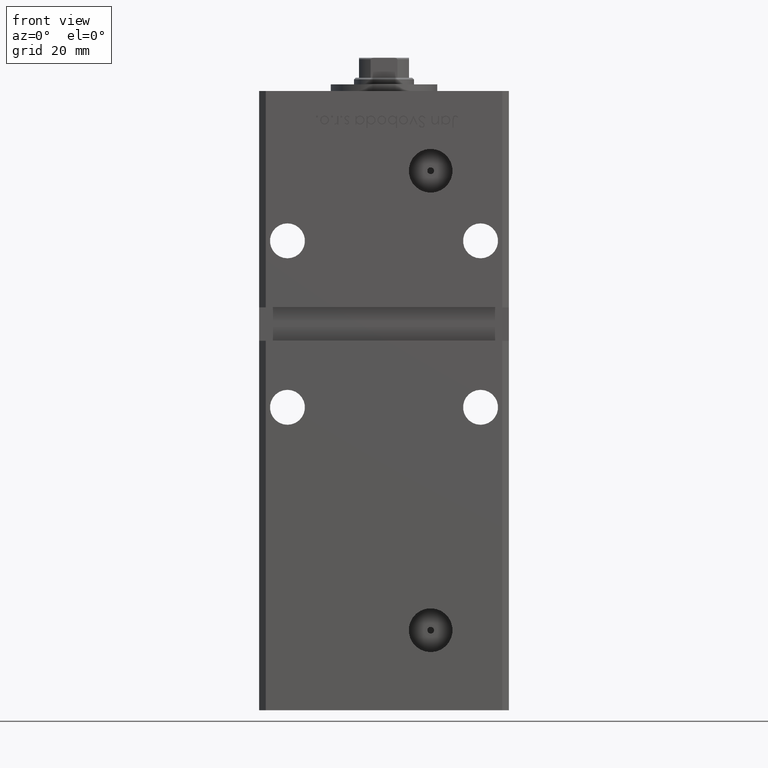
[diagram: clean part render]
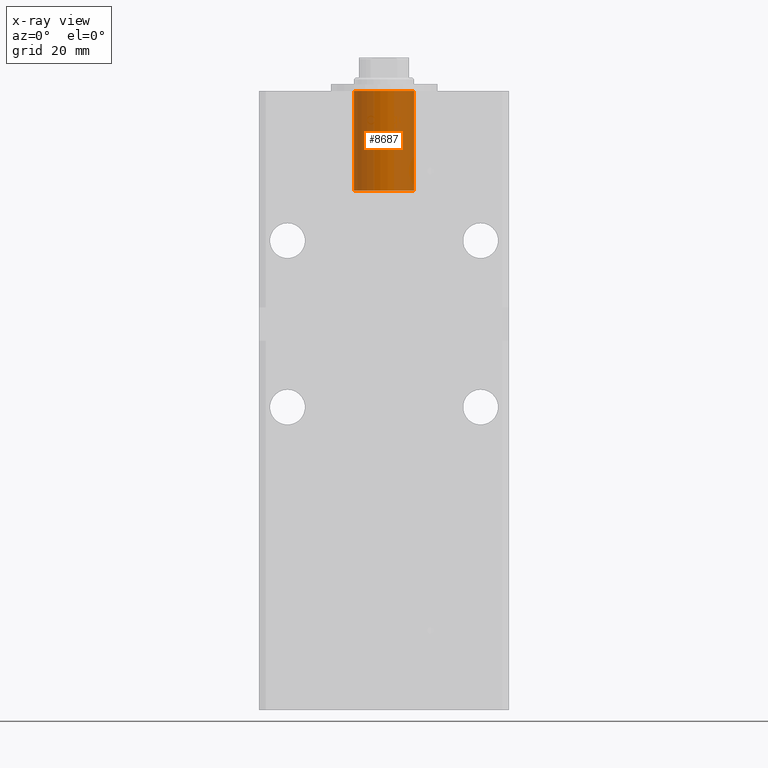
[diagram: x-ray — body ghosted, one internal face saturated and labeled with its STEP entity id]
A machine part, front view, then the same camera in x-ray: the body is ghosted and one INTERNAL B-rep face — a face not visible from any outside direction — is saturated and labeled: STEP entity #8687.
In plain terms, the highlighted cylindrical surface (edge-blend (fillet) strip) has radius 9 mm, axis along (0, 0, 1).
Its self-contained STEP definition (entity closure, byte-faithful):
#1533 = CYLINDRICAL_SURFACE ( 'NONE', #37043, 8.999999999999996447 ) ;
#1541 = DIRECTION ( 'NONE',  ( 0.000000000000000000, 0.000000000000000000, 1.000000000000000000 ) ) ;
#5300 = EDGE_CURVE ( 'NONE', #38037, #29635, #17379, .T. ) ;
#5843 = AXIS2_PLACEMENT_3D ( 'NONE', #39410, #6601, #19789 ) ;
#5919 = CIRCLE ( 'NONE', #35999, 8.999999999999996447 ) ;
#6112 = DIRECTION ( 'NONE',  ( 1.000000000000000000, 0.000000000000000000, 0.000000000000000000 ) ) ;
#6601 = DIRECTION ( 'NONE',  ( 0.000000000000000000, 0.000000000000000000, 1.000000000000000000 ) ) ;
#8687 = ADVANCED_FACE ( 'NONE', ( #13655 ), #1533, .F. ) ;
#11062 = VERTEX_POINT ( 'NONE', #16642 ) ;
#11208 = VECTOR ( 'NONE', #42084, 1000.000000000000000 ) ;
#11904 = VERTEX_POINT ( 'NONE', #31144 ) ;
#12614 = CARTESIAN_POINT ( 'NONE',  ( 8.999999999999996447, -6.938893903907228378E-15, -30.00000000000000000 ) ) ;
#13655 = FACE_OUTER_BOUND ( 'NONE', #46173, .T. ) ;
#15313 = CIRCLE ( 'NONE', #5843, 8.999999999999996447 ) ;
#16642 = CARTESIAN_POINT ( 'NONE',  ( 8.999999999999996447, -6.938893903907228378E-15, -30.00000000000000000 ) ) ;
#16834 = CARTESIAN_POINT ( 'NONE',  ( -8.999999999999996447, -5.836711784674611255E-15, -30.00000000000000000 ) ) ;
#17379 = LINE ( 'NONE', #16834, #11208 ) ;
#18713 = EDGE_CURVE ( 'NONE', #11062, #11904, #49718, .T. ) ;
#19789 = DIRECTION ( 'NONE',  ( 1.000000000000000000, 0.000000000000000000, 0.000000000000000000 ) ) ;
#29635 = VERTEX_POINT ( 'NONE', #30473 ) ;
#30316 = CARTESIAN_POINT ( 'NONE',  ( 0.000000000000000000, -6.938893903907228378E-15, -30.00000000000000000 ) ) ;
#30473 = CARTESIAN_POINT ( 'NONE',  ( -8.999999999999996447, -5.836711784674611255E-15, 0.000000000000000000 ) ) ;
#31144 = CARTESIAN_POINT ( 'NONE',  ( 8.999999999999996447, -6.938893903907228378E-15, 0.000000000000000000 ) ) ;
#31416 = ORIENTED_EDGE ( 'NONE', *, *, #5300, .T. ) ;
#32330 = ORIENTED_EDGE ( 'NONE', *, *, #39284, .F. ) ;
#34690 = CARTESIAN_POINT ( 'NONE',  ( -8.999999999999996447, -5.836711784674611255E-15, -30.00000000000000000 ) ) ;
#34890 = DIRECTION ( 'NONE',  ( 1.000000000000000000, 0.000000000000000000, 0.000000000000000000 ) ) ;
#34900 = CARTESIAN_POINT ( 'NONE',  ( 0.000000000000000000, -6.938893903907228378E-15, -30.00000000000000000 ) ) ;
#35999 = AXIS2_PLACEMENT_3D ( 'NONE', #34900, #1541, #6112 ) ;
#37043 = AXIS2_PLACEMENT_3D ( 'NONE', #30316, #38913, #34890 ) ;
#37601 = DIRECTION ( 'NONE',  ( -0.000000000000000000, -0.000000000000000000, 1.000000000000000000 ) ) ;
#38037 = VERTEX_POINT ( 'NONE', #34690 ) ;
#38913 = DIRECTION ( 'NONE',  ( -0.000000000000000000, -0.000000000000000000, 1.000000000000000000 ) ) ;
#39284 = EDGE_CURVE ( 'NONE', #38037, #11062, #5919, .T. ) ;
#39410 = CARTESIAN_POINT ( 'NONE',  ( 0.000000000000000000, -6.938893903907228378E-15, 0.000000000000000000 ) ) ;
#40415 = EDGE_CURVE ( 'NONE', #29635, #11904, #15313, .T. ) ;
#42084 = DIRECTION ( 'NONE',  ( -0.000000000000000000, -0.000000000000000000, 1.000000000000000000 ) ) ;
#44255 = ORIENTED_EDGE ( 'NONE', *, *, #40415, .T. ) ;
#45883 = ORIENTED_EDGE ( 'NONE', *, *, #18713, .F. ) ;
#46173 = EDGE_LOOP ( 'NONE', ( #32330, #31416, #44255, #45883 ) ) ;
#46679 = VECTOR ( 'NONE', #37601, 1000.000000000000000 ) ;
#49718 = LINE ( 'NONE', #12614, #46679 ) ;